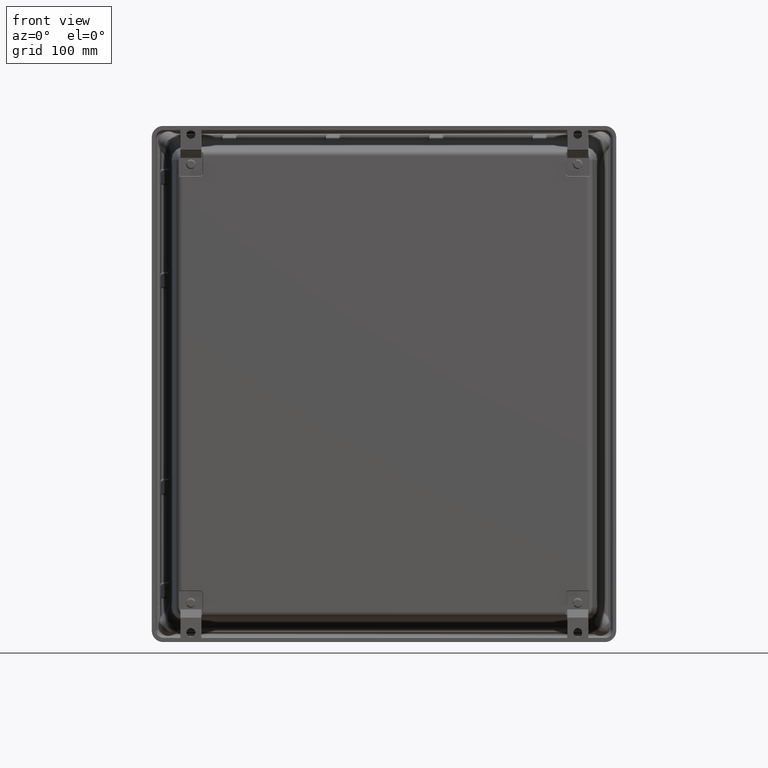
[diagram: clean part render]
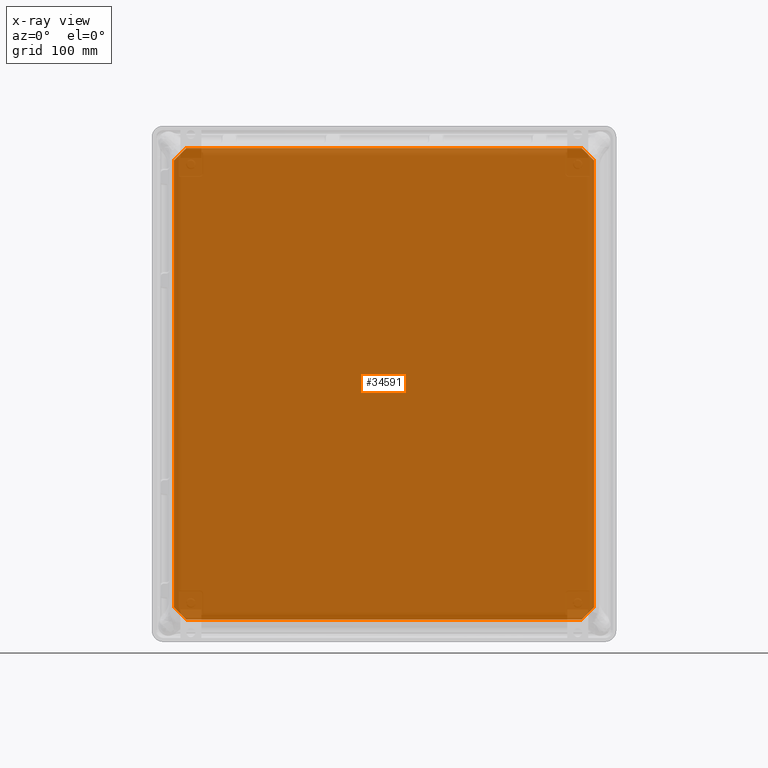
[diagram: x-ray — body ghosted, one internal face saturated and labeled with its STEP entity id]
A machine part, front view, then the same camera in x-ray: the body is ghosted and one INTERNAL B-rep face — a face not visible from any outside direction — is saturated and labeled: STEP entity #34591.
In plain terms, the highlighted planar face has unit normal (0, 1, 0).
Its self-contained STEP definition (entity closure, byte-faithful):
#70 = ORIENTED_EDGE ( 'NONE', *, *, #38664, .T. ) ;
#116 = CARTESIAN_POINT ( 'NONE',  ( -9.141072769686829200, -0.8750000000000000000, -7.650008076503469900 ) ) ;
#165 = CARTESIAN_POINT ( 'NONE',  ( -9.563000000000000600, -0.8750000000000000000, 8.141072769686825700 ) ) ;
#195 = VECTOR ( 'NONE', #46226, 39.37007874015748900 ) ;
#721 =( BOUNDED_CURVE ( )  B_SPLINE_CURVE ( 3, ( #26722, #780, #37942, #15668 ),
 .UNSPECIFIED., .F., .F. ) 
 B_SPLINE_CURVE_WITH_KNOTS ( ( 4, 4 ),
 ( -1.421085471520200400E-014, 0.3926359957910833300 ),
 .UNSPECIFIED. ) 
 CURVE ( )  GEOMETRIC_REPRESENTATION_ITEM ( )  RATIONAL_B_SPLINE_CURVE ( ( 1.000000000000000000, 0.9871942890935507800, 0.9871942890935507800, 1.000000000000000000 ) ) 
 REPRESENTATION_ITEM ( '' )  );
#780 = CARTESIAN_POINT ( 'NONE',  ( 8.654013161748949300, -0.8750000000000000000, -8.140276119518745200 ) ) ;
#1000 = EDGE_LOOP ( 'NONE', ( #11111, #30212, #18176, #2611, #44536, #9262, #12128, #70, #39787, #28366, #22043, #1915, #45243, #20445, #20882, #26333, #10643, #14234, #18498, #11494, #47666, #18209, #27766, #2884 ) ) ;
#1194 = VERTEX_POINT ( 'NONE', #42982 ) ;
#1492 = CARTESIAN_POINT ( 'NONE',  ( 9.134882022676672300, -0.8750000000000000000, -7.664953861896608900 ) ) ;
#1846 = CARTESIAN_POINT ( 'NONE',  ( 9.141072769686827500, -0.8750000000000000000, -7.645924450141575500 ) ) ;
#1850 = EDGE_CURVE ( 'NONE', #19111, #8792, #42594, .T. ) ;
#1915 = ORIENTED_EDGE ( 'NONE', *, *, #7598, .T. ) ;
#1931 = CARTESIAN_POINT ( 'NONE',  ( 9.131994462784348300, -0.8750000000000000000, 7.667841421788942600 ) ) ;
#1968 =( BOUNDED_CURVE ( )  B_SPLINE_CURVE ( 3, ( #29614, #22145, #37082, #14811 ),
 .UNSPECIFIED., .F., .F. ) 
 B_SPLINE_CURVE_WITH_KNOTS ( ( 4, 4 ),
 ( 5.890549311388465300, 6.283185307179598700 ),
 .UNSPECIFIED. ) 
 CURVE ( )  GEOMETRIC_REPRESENTATION_ITEM ( )  RATIONAL_B_SPLINE_CURVE ( ( 1.000000000000000000, 0.9871942890935484500, 0.9871942890935484500, 1.000000000000000000 ) ) 
 REPRESENTATION_ITEM ( '' )  );
#2171 = CARTESIAN_POINT ( 'NONE',  ( -8.657785841986582300, -0.8750000000000000000, -8.138713424197821000 ) ) ;
#2248 = CARTESIAN_POINT ( 'NONE',  ( -9.563000000000000600, -0.8750000000000000000, -8.141072769686827500 ) ) ;
#2439 = CARTESIAN_POINT ( 'NONE',  ( -8.667841421788939000, -0.8750000000000000000, 8.131994462784344800 ) ) ;
#2611 = ORIENTED_EDGE ( 'NONE', *, *, #12931, .T. ) ;
#2808 =( BOUNDED_CURVE ( )  B_SPLINE_CURVE ( 3, ( #26415, #7879, #15357, #41354 ),
 .UNSPECIFIED., .F., .F. ) 
 B_SPLINE_CURVE_WITH_KNOTS ( ( 4, 4 ),
 ( -1.421085471520200400E-014, 0.3926359957910833300 ),
 .UNSPECIFIED. ) 
 CURVE ( )  GEOMETRIC_REPRESENTATION_ITEM ( )  RATIONAL_B_SPLINE_CURVE ( ( 1.000000000000000000, 0.9871942890935507800, 0.9871942890935507800, 1.000000000000000000 ) ) 
 REPRESENTATION_ITEM ( '' )  );
#2880 = EDGE_CURVE ( 'NONE', #39133, #15780, #34520, .T. ) ;
#2884 = ORIENTED_EDGE ( 'NONE', *, *, #1850, .T. ) ;
#2901 = CARTESIAN_POINT ( 'NONE',  ( -8.667841421788939000, -0.8750000000000000000, 8.131994462784344800 ) ) ;
#3116 = CARTESIAN_POINT ( 'NONE',  ( 9.141072769686829200, -0.8750000000000000000, -7.650008076503471700 ) ) ;
#3382 = CARTESIAN_POINT ( 'NONE',  ( 8.657785841986582300, -0.8750000000000000000, 8.138713424197821000 ) ) ;
#4024 = EDGE_CURVE ( 'NONE', #39281, #30829, #7005, .T. ) ;
#4662 = VECTOR ( 'NONE', #20585, 39.37007874015748100 ) ;
#4704 = EDGE_CURVE ( 'NONE', #8792, #24822, #24415, .T. ) ;
#4908 =( BOUNDED_CURVE ( )  B_SPLINE_CURVE ( 3, ( #37915, #11884, #15650, #41668 ),
 .UNSPECIFIED., .F., .F. ) 
 B_SPLINE_CURVE_WITH_KNOTS ( ( 4, 4 ),
 ( 5.890549311388478600, 6.283185307179572000 ),
 .UNSPECIFIED. ) 
 CURVE ( )  GEOMETRIC_REPRESENTATION_ITEM ( )  RATIONAL_B_SPLINE_CURVE ( ( 1.000000000000000000, 0.9871942890935511100, 0.9871942890935511100, 1.000000000000000000 ) ) 
 REPRESENTATION_ITEM ( '' )  );
#5405 = VERTEX_POINT ( 'NONE', #5482 ) ;
#5482 = CARTESIAN_POINT ( 'NONE',  ( -9.141072769686829200, -0.8750000000000000000, 7.645924450141576400 ) ) ;
#5544 = LINE ( 'NONE', #165, #6653 ) ;
#5938 = CARTESIAN_POINT ( 'NONE',  ( 9.141072769686829200, -0.8750000000000000000, 7.650008076503469900 ) ) ;
#6128 = CARTESIAN_POINT ( 'NONE',  ( 8.645924450141572800, -0.8750000000000000000, 8.141072769686825700 ) ) ;
#6277 = VECTOR ( 'NONE', #31987, 39.37007874015748100 ) ;
#6414 = EDGE_CURVE ( 'NONE', #44980, #5405, #45833, .T. ) ;
#6464 = CARTESIAN_POINT ( 'NONE',  ( -8.661558522224218800, -0.8750000000000000000, -8.137150728876896700 ) ) ;
#6653 = VECTOR ( 'NONE', #26105, 39.37007874015748100 ) ;
#6700 = CARTESIAN_POINT ( 'NONE',  ( 8.661558522224215300, -0.8750000000000001100, 8.137150728876896700 ) ) ;
#7005 = LINE ( 'NONE', #2248, #14525 ) ;
#7598 = EDGE_CURVE ( 'NONE', #15780, #44980, #46607, .T. ) ;
#7879 = CARTESIAN_POINT ( 'NONE',  ( -8.654013161748949300, -0.8750000000000000000, 8.140276119518745200 ) ) ;
#8713 = VECTOR ( 'NONE', #28716, 39.37007874015748900 ) ;
#8792 = VERTEX_POINT ( 'NONE', #14739 ) ;
#9152 = DIRECTION ( 'NONE',  ( -0.7071067811865490200, 0.0000000000000000000, 0.7071067811865460200 ) ) ;
#9262 = ORIENTED_EDGE ( 'NONE', *, *, #39513, .T. ) ;
#9632 = CARTESIAN_POINT ( 'NONE',  ( 9.138713424197822700, -0.8750000000000000000, 7.657785841986584100 ) ) ;
#9713 = CARTESIAN_POINT ( 'NONE',  ( -9.141072769686829200, -0.8750000000000000000, -8.563000000000000600 ) ) ;
#10007 = LINE ( 'NONE', #34996, #195 ) ;
#10167 = CARTESIAN_POINT ( 'NONE',  ( -8.664953861896608000, -0.8750000000000000000, -8.134882022676670500 ) ) ;
#10206 = EDGE_CURVE ( 'NONE', #36378, #12689, #28152, .T. ) ;
#10643 = ORIENTED_EDGE ( 'NONE', *, *, #10206, .T. ) ;
#11016 = VERTEX_POINT ( 'NONE', #35927 ) ;
#11111 = ORIENTED_EDGE ( 'NONE', *, *, #4704, .T. ) ;
#11406 = CARTESIAN_POINT ( 'NONE',  ( -0.6630820577133965700, -0.8750000000000000000, -17.46291794228664100 ) ) ;
#11492 = VERTEX_POINT ( 'NONE', #14893 ) ;
#11494 = ORIENTED_EDGE ( 'NONE', *, *, #41555, .T. ) ;
#11884 = CARTESIAN_POINT ( 'NONE',  ( 8.664953861896609800, -0.8750000000000001100, -8.134882022676672300 ) ) ;
#12128 = ORIENTED_EDGE ( 'NONE', *, *, #4024, .T. ) ;
#12247 = CARTESIAN_POINT ( 'NONE',  ( -8.657785841986582300, -0.8750000000000000000, -8.138713424197821000 ) ) ;
#12275 = CARTESIAN_POINT ( 'NONE',  ( 8.667841421788937200, -0.8750000000000000000, 8.131994462784343000 ) ) ;
#12439 = EDGE_CURVE ( 'NONE', #24822, #11016, #24315, .T. ) ;
#12553 = CARTESIAN_POINT ( 'NONE',  ( -9.138713424197821000, -0.8750000000000000000, 7.657785841986585900 ) ) ;
#12689 = VERTEX_POINT ( 'NONE', #38797 ) ;
#12724 = CARTESIAN_POINT ( 'NONE',  ( -8.645924450141574600, -0.8750000000000000000, -8.141072769686827500 ) ) ;
#12865 = CARTESIAN_POINT ( 'NONE',  ( -9.137150728876898500, -0.8750000000000000000, 7.661558522224220600 ) ) ;
#12887 =( BOUNDED_CURVE ( )  B_SPLINE_CURVE ( 3, ( #45985, #19953, #1492, #27445 ),
 .UNSPECIFIED., .F., .F. ) 
 B_SPLINE_CURVE_WITH_KNOTS ( ( 4, 4 ),
 ( 1.232360864077365500E-014, 0.3926359957910804400 ),
 .UNSPECIFIED. ) 
 CURVE ( )  GEOMETRIC_REPRESENTATION_ITEM ( )  RATIONAL_B_SPLINE_CURVE ( ( 1.000000000000000000, 0.9871942890935525600, 0.9871942890935525600, 1.000000000000000000 ) ) 
 REPRESENTATION_ITEM ( '' )  );
#12931 = EDGE_CURVE ( 'NONE', #40311, #47275, #20568, .T. ) ;
#13091 = CARTESIAN_POINT ( 'NONE',  ( 9.141072769686827500, -0.8750000000000000000, -8.563000000000000600 ) ) ;
#13548 = CARTESIAN_POINT ( 'NONE',  ( 8.657785841986582300, -0.8750000000000000000, 8.138713424197821000 ) ) ;
#14037 = CARTESIAN_POINT ( 'NONE',  ( -8.661558522224218800, -0.8750000000000001100, 8.137150728876896700 ) ) ;
#14143 = CARTESIAN_POINT ( 'NONE',  ( 8.664953861896609800, -0.8750000000000001100, 8.134882022676670500 ) ) ;
#14147 = EDGE_CURVE ( 'NONE', #47436, #35228, #10007, .T. ) ;
#14234 = ORIENTED_EDGE ( 'NONE', *, *, #30743, .T. ) ;
#14260 = CARTESIAN_POINT ( 'NONE',  ( 9.141072769686827500, -0.8750000000000000000, -7.645924450141575500 ) ) ;
#14525 = VECTOR ( 'NONE', #20732, 39.37007874015748100 ) ;
#14739 = CARTESIAN_POINT ( 'NONE',  ( 9.141072769686829200, -0.8750000000000000000, 7.645924450141573700 ) ) ;
#14811 = CARTESIAN_POINT ( 'NONE',  ( -9.138713424197821000, -0.8750000000000000000, 7.657785841986585900 ) ) ;
#14893 = CARTESIAN_POINT ( 'NONE',  ( -9.138713424197821000, -0.8750000000000000000, 7.657785841986585900 ) ) ;
#14943 = VERTEX_POINT ( 'NONE', #28159 ) ;
#15187 = DIRECTION ( 'NONE',  ( -0.7071067811865490200, 0.0000000000000000000, -0.7071067811865460200 ) ) ;
#15266 =( BOUNDED_CURVE ( )  B_SPLINE_CURVE ( 3, ( #42954, #20647, #24399, #2171 ),
 .UNSPECIFIED., .F., .F. ) 
 B_SPLINE_CURVE_WITH_KNOTS ( ( 4, 4 ),
 ( 5.890549311388502600, 6.283185307179600400 ),
 .UNSPECIFIED. ) 
 CURVE ( )  GEOMETRIC_REPRESENTATION_ITEM ( )  RATIONAL_B_SPLINE_CURVE ( ( 1.000000000000000000, 0.9871942890935507800, 0.9871942890935507800, 1.000000000000000000 ) ) 
 REPRESENTATION_ITEM ( '' )  );
#15357 = CARTESIAN_POINT ( 'NONE',  ( -8.650008076503469900, -0.8750000000000000000, 8.141072769686827500 ) ) ;
#15650 = CARTESIAN_POINT ( 'NONE',  ( 8.661558522224218800, -0.8750000000000001100, -8.137150728876896700 ) ) ;
#15666 = VERTEX_POINT ( 'NONE', #27594 ) ;
#15668 = CARTESIAN_POINT ( 'NONE',  ( 8.645924450141574600, -0.8750000000000000000, -8.141072769686825700 ) ) ;
#15780 = VERTEX_POINT ( 'NONE', #47074 ) ;
#16343 = CARTESIAN_POINT ( 'NONE',  ( 9.138713424197822700, -0.8750000000000000000, 7.657785841986584100 ) ) ;
#18169 = VERTEX_POINT ( 'NONE', #12247 ) ;
#18176 = ORIENTED_EDGE ( 'NONE', *, *, #30312, .T. ) ;
#18183 =( BOUNDED_CURVE ( )  B_SPLINE_CURVE ( 3, ( #12553, #12865, #20360, #46392 ),
 .UNSPECIFIED., .F., .F. ) 
 B_SPLINE_CURVE_WITH_KNOTS ( ( 4, 4 ),
 ( 1.232360864077365500E-014, 0.3926359957910804400 ),
 .UNSPECIFIED. ) 
 CURVE ( )  GEOMETRIC_REPRESENTATION_ITEM ( )  RATIONAL_B_SPLINE_CURVE ( ( 1.000000000000000000, 0.9871942890935525600, 0.9871942890935525600, 1.000000000000000000 ) ) 
 REPRESENTATION_ITEM ( '' )  );
#18209 = ORIENTED_EDGE ( 'NONE', *, *, #14147, .T. ) ;
#18498 = ORIENTED_EDGE ( 'NONE', *, *, #25839, .T. ) ;
#18559 = LINE ( 'NONE', #32292, #8713 ) ;
#19111 = VERTEX_POINT ( 'NONE', #48177 ) ;
#19844 = EDGE_CURVE ( 'NONE', #47275, #14943, #4908, .T. ) ;
#19953 = CARTESIAN_POINT ( 'NONE',  ( 9.137150728876898500, -0.8750000000000000000, -7.661558522224218800 ) ) ;
#19986 = EDGE_CURVE ( 'NONE', #31345, #39133, #41652, .T. ) ;
#20360 = CARTESIAN_POINT ( 'NONE',  ( -9.134882022676670500, -0.8750000000000000000, 7.664953861896611500 ) ) ;
#20445 = ORIENTED_EDGE ( 'NONE', *, *, #40283, .T. ) ;
#20564 = CARTESIAN_POINT ( 'NONE',  ( -9.131994462784343000, -0.8750000000000000000, 7.667841421788939900 ) ) ;
#20568 = LINE ( 'NONE', #11406, #30452 ) ;
#20585 = DIRECTION ( 'NONE',  ( 0.0000000000000000000, 0.0000000000000000000, -1.000000000000000000 ) ) ;
#20647 = CARTESIAN_POINT ( 'NONE',  ( -8.650008076503469900, -0.8750000000000000000, -8.141072769686827500 ) ) ;
#20732 = DIRECTION ( 'NONE',  ( -1.000000000000000000, 0.0000000000000000000, 0.0000000000000000000 ) ) ;
#20882 = ORIENTED_EDGE ( 'NONE', *, *, #42300, .T. ) ;
#21230 =( BOUNDED_CURVE ( )  B_SPLINE_CURVE ( 3, ( #31160, #34879, #38627, #16343 ),
 .UNSPECIFIED., .F., .F. ) 
 B_SPLINE_CURVE_WITH_KNOTS ( ( 4, 4 ),
 ( 5.890549311388506100, 6.283185307179573800 ),
 .UNSPECIFIED. ) 
 CURVE ( )  GEOMETRIC_REPRESENTATION_ITEM ( )  RATIONAL_B_SPLINE_CURVE ( ( 1.000000000000000000, 0.9871942890935525600, 0.9871942890935525600, 1.000000000000000000 ) ) 
 REPRESENTATION_ITEM ( '' )  );
#21564 = EDGE_CURVE ( 'NONE', #39294, #47436, #24838, .T. ) ;
#21754 = CARTESIAN_POINT ( 'NONE',  ( 9.138713424197822700, -0.8750000000000000000, -7.657785841986584100 ) ) ;
#21766 = CARTESIAN_POINT ( 'NONE',  ( -9.563000000000000600, -0.8750000000000000000, -8.563000000000000600 ) ) ;
#22043 = ORIENTED_EDGE ( 'NONE', *, *, #2880, .T. ) ;
#22145 = CARTESIAN_POINT ( 'NONE',  ( -9.141072769686827500, -0.8750000000000000000, 7.650008076503472600 ) ) ;
#24315 =( BOUNDED_CURVE ( )  B_SPLINE_CURVE ( 3, ( #14260, #3116, #44038, #21754 ),
 .UNSPECIFIED., .F., .F. ) 
 B_SPLINE_CURVE_WITH_KNOTS ( ( 4, 4 ),
 ( 5.890549311388500800, 6.283185307179598700 ),
 .UNSPECIFIED. ) 
 CURVE ( )  GEOMETRIC_REPRESENTATION_ITEM ( )  RATIONAL_B_SPLINE_CURVE ( ( 1.000000000000000000, 0.9871942890935507800, 0.9871942890935507800, 1.000000000000000000 ) ) 
 REPRESENTATION_ITEM ( '' )  );
#24399 = CARTESIAN_POINT ( 'NONE',  ( -8.654013161748949300, -0.8750000000000000000, -8.140276119518745200 ) ) ;
#24415 = LINE ( 'NONE', #13091, #4662 ) ;
#24669 = CARTESIAN_POINT ( 'NONE',  ( -9.140276119518747000, -0.8750000000000000000, -7.654013161748950200 ) ) ;
#24822 = VERTEX_POINT ( 'NONE', #1846 ) ;
#24838 =( BOUNDED_CURVE ( )  B_SPLINE_CURVE ( 3, ( #36413, #6700, #14143, #40155 ),
 .UNSPECIFIED., .F., .F. ) 
 B_SPLINE_CURVE_WITH_KNOTS ( ( 4, 4 ),
 ( 1.445786488582384300E-014, 0.3926359957911324000 ),
 .UNSPECIFIED. ) 
 CURVE ( )  GEOMETRIC_REPRESENTATION_ITEM ( )  RATIONAL_B_SPLINE_CURVE ( ( 1.000000000000000000, 0.9871942890935493400, 0.9871942890935493400, 1.000000000000000000 ) ) 
 REPRESENTATION_ITEM ( '' )  );
#25346 = PLANE ( 'NONE',  #34788 ) ;
#25434 = CARTESIAN_POINT ( 'NONE',  ( 8.645924450141574600, -0.8750000000000000000, -8.141072769686825700 ) ) ;
#25498 = DIRECTION ( 'NONE',  ( 0.0000000000000000000, -0.0000000000000000000, -1.000000000000000000 ) ) ;
#25839 = EDGE_CURVE ( 'NONE', #1194, #15666, #5544, .T. ) ;
#26064 = CARTESIAN_POINT ( 'NONE',  ( -9.141072769686829200, -0.8750000000000000000, -7.645924450141573700 ) ) ;
#26105 = DIRECTION ( 'NONE',  ( 1.000000000000000000, 0.0000000000000000000, 0.0000000000000000000 ) ) ;
#26333 = ORIENTED_EDGE ( 'NONE', *, *, #29890, .T. ) ;
#26415 = CARTESIAN_POINT ( 'NONE',  ( -8.657785841986582300, -0.8750000000000000000, 8.138713424197821000 ) ) ;
#26722 = CARTESIAN_POINT ( 'NONE',  ( 8.657785841986582300, -0.8750000000000000000, -8.138713424197821000 ) ) ;
#27445 = CARTESIAN_POINT ( 'NONE',  ( 9.131994462784344800, -0.8750000000000000000, -7.667841421788938100 ) ) ;
#27594 = CARTESIAN_POINT ( 'NONE',  ( 8.645924450141572800, -0.8750000000000000000, 8.141072769686825700 ) ) ;
#27766 = ORIENTED_EDGE ( 'NONE', *, *, #47421, .T. ) ;
#28106 =( BOUNDED_CURVE ( )  B_SPLINE_CURVE ( 3, ( #43530, #6464, #10167, #36181 ),
 .UNSPECIFIED., .F., .F. ) 
 B_SPLINE_CURVE_WITH_KNOTS ( ( 4, 4 ),
 ( 1.445786488582384300E-014, 0.3926359957910824400 ),
 .UNSPECIFIED. ) 
 CURVE ( )  GEOMETRIC_REPRESENTATION_ITEM ( )  RATIONAL_B_SPLINE_CURVE ( ( 1.000000000000000000, 0.9871942890935525600, 0.9871942890935525600, 1.000000000000000000 ) ) 
 REPRESENTATION_ITEM ( '' )  );
#28152 =( BOUNDED_CURVE ( )  B_SPLINE_CURVE ( 3, ( #2901, #36309, #14037, #40053 ),
 .UNSPECIFIED., .F., .F. ) 
 B_SPLINE_CURVE_WITH_KNOTS ( ( 4, 4 ),
 ( 5.890549311388478600, 6.283185307179572000 ),
 .UNSPECIFIED. ) 
 CURVE ( )  GEOMETRIC_REPRESENTATION_ITEM ( )  RATIONAL_B_SPLINE_CURVE ( ( 1.000000000000000000, 0.9871942890935511100, 0.9871942890935511100, 1.000000000000000000 ) ) 
 REPRESENTATION_ITEM ( '' )  );
#28159 = CARTESIAN_POINT ( 'NONE',  ( 8.657785841986582300, -0.8750000000000000000, -8.138713424197821000 ) ) ;
#28236 = CARTESIAN_POINT ( 'NONE',  ( -9.131994462784344800, -0.8750000000000000000, -7.667841421788939000 ) ) ;
#28280 = CARTESIAN_POINT ( 'NONE',  ( -8.667841421788937200, -0.8750000000000000000, -8.131994462784343000 ) ) ;
#28360 = CARTESIAN_POINT ( 'NONE',  ( 8.650008076503469900, -0.8750000000000000000, 8.141072769686827500 ) ) ;
#28366 = ORIENTED_EDGE ( 'NONE', *, *, #19986, .T. ) ;
#28382 = CARTESIAN_POINT ( 'NONE',  ( -9.138713424197822700, -0.8750000000000000000, -7.657785841986584100 ) ) ;
#28716 = DIRECTION ( 'NONE',  ( 0.7071067811865490200, 0.0000000000000000000, 0.7071067811865460200 ) ) ;
#29614 = CARTESIAN_POINT ( 'NONE',  ( -9.141072769686829200, -0.8750000000000000000, 7.645924450141576400 ) ) ;
#29890 = EDGE_CURVE ( 'NONE', #30183, #36378, #18559, .T. ) ;
#30183 = VERTEX_POINT ( 'NONE', #20564 ) ;
#30212 = ORIENTED_EDGE ( 'NONE', *, *, #12439, .T. ) ;
#30312 = EDGE_CURVE ( 'NONE', #11016, #40311, #12887, .T. ) ;
#30452 = VECTOR ( 'NONE', #15187, 39.37007874015748900 ) ;
#30743 = EDGE_CURVE ( 'NONE', #12689, #1194, #2808, .T. ) ;
#30829 = VERTEX_POINT ( 'NONE', #12724 ) ;
#31160 = CARTESIAN_POINT ( 'NONE',  ( 9.131994462784348300, -0.8750000000000000000, 7.667841421788942600 ) ) ;
#31345 = VERTEX_POINT ( 'NONE', #28280 ) ;
#31788 = VECTOR ( 'NONE', #9152, 39.37007874015748900 ) ;
#31901 = CARTESIAN_POINT ( 'NONE',  ( 9.140276119518747000, -0.8750000000000000000, 7.654013161748950200 ) ) ;
#31987 = DIRECTION ( 'NONE',  ( 0.0000000000000000000, 0.0000000000000000000, 1.000000000000000000 ) ) ;
#32292 = CARTESIAN_POINT ( 'NONE',  ( -17.46291794228664400, -0.8750000000000000000, -0.6630820577133221800 ) ) ;
#34520 =( BOUNDED_CURVE ( )  B_SPLINE_CURVE ( 3, ( #41000, #48151, #40676, #44739 ),
 .UNSPECIFIED., .F., .F. ) 
 B_SPLINE_CURVE_WITH_KNOTS ( ( 4, 4 ),
 ( 5.890549311388455500, 6.283185307179573800 ),
 .UNSPECIFIED. ) 
 CURVE ( )  GEOMETRIC_REPRESENTATION_ITEM ( )  RATIONAL_B_SPLINE_CURVE ( ( 1.000000000000000000, 0.9871942890935493400, 0.9871942890935493400, 1.000000000000000000 ) ) 
 REPRESENTATION_ITEM ( '' )  );
#34591 = ADVANCED_FACE ( 'NONE', ( #38804 ), #25346, .F. ) ;
#34788 = AXIS2_PLACEMENT_3D ( 'NONE', #21766, #47769, #25498 ) ;
#34876 = EDGE_CURVE ( 'NONE', #18169, #31345, #28106, .T. ) ;
#34879 = CARTESIAN_POINT ( 'NONE',  ( 9.134882022676672300, -0.8750000000000000000, 7.664953861896608900 ) ) ;
#34996 = CARTESIAN_POINT ( 'NONE',  ( 7.899917942286607300, -0.8750000000000000000, 8.899917942286681000 ) ) ;
#35155 = CARTESIAN_POINT ( 'NONE',  ( -8.899917942286641900, -0.8750000000000000000, -7.899917942286640100 ) ) ;
#35228 = VERTEX_POINT ( 'NONE', #1931 ) ;
#35647 = CARTESIAN_POINT ( 'NONE',  ( 9.141072769686829200, -0.8750000000000000000, 7.645924450141573700 ) ) ;
#35827 = CARTESIAN_POINT ( 'NONE',  ( 8.654013161748947500, -0.8750000000000000000, 8.140276119518745200 ) ) ;
#35927 = CARTESIAN_POINT ( 'NONE',  ( 9.138713424197822700, -0.8750000000000000000, -7.657785841986584100 ) ) ;
#36181 = CARTESIAN_POINT ( 'NONE',  ( -8.667841421788937200, -0.8750000000000000000, -8.131994462784343000 ) ) ;
#36309 = CARTESIAN_POINT ( 'NONE',  ( -8.664953861896609800, -0.8750000000000001100, 8.134882022676672300 ) ) ;
#36378 = VERTEX_POINT ( 'NONE', #2439 ) ;
#36413 = CARTESIAN_POINT ( 'NONE',  ( 8.657785841986582300, -0.8750000000000000000, 8.138713424197821000 ) ) ;
#37082 = CARTESIAN_POINT ( 'NONE',  ( -9.140276119518745200, -0.8750000000000000000, 7.654013161748952000 ) ) ;
#37168 = CARTESIAN_POINT ( 'NONE',  ( 8.667841421788939000, -0.8750000000000000000, -8.131994462784343000 ) ) ;
#37915 = CARTESIAN_POINT ( 'NONE',  ( 8.667841421788939000, -0.8750000000000000000, -8.131994462784343000 ) ) ;
#37942 = CARTESIAN_POINT ( 'NONE',  ( 8.650008076503469900, -0.8750000000000000000, -8.141072769686827500 ) ) ;
#38485 =( BOUNDED_CURVE ( )  B_SPLINE_CURVE ( 3, ( #6128, #28360, #35827, #13548 ),
 .UNSPECIFIED., .F., .F. ) 
 B_SPLINE_CURVE_WITH_KNOTS ( ( 4, 4 ),
 ( 5.890549311388502600, 6.283185307179600400 ),
 .UNSPECIFIED. ) 
 CURVE ( )  GEOMETRIC_REPRESENTATION_ITEM ( )  RATIONAL_B_SPLINE_CURVE ( ( 1.000000000000000000, 0.9871942890935507800, 0.9871942890935507800, 1.000000000000000000 ) ) 
 REPRESENTATION_ITEM ( '' )  );
#38627 = CARTESIAN_POINT ( 'NONE',  ( 9.137150728876898500, -0.8750000000000000000, 7.661558522224218800 ) ) ;
#38664 = EDGE_CURVE ( 'NONE', #30829, #18169, #15266, .T. ) ;
#38797 = CARTESIAN_POINT ( 'NONE',  ( -8.657785841986582300, -0.8750000000000000000, 8.138713424197821000 ) ) ;
#38804 = FACE_OUTER_BOUND ( 'NONE', #1000, .T. ) ;
#39133 = VERTEX_POINT ( 'NONE', #28236 ) ;
#39281 = VERTEX_POINT ( 'NONE', #25434 ) ;
#39294 = VERTEX_POINT ( 'NONE', #3382 ) ;
#39513 = EDGE_CURVE ( 'NONE', #14943, #39281, #721, .T. ) ;
#39787 = ORIENTED_EDGE ( 'NONE', *, *, #34876, .T. ) ;
#40053 = CARTESIAN_POINT ( 'NONE',  ( -8.657785841986582300, -0.8750000000000000000, 8.138713424197821000 ) ) ;
#40155 = CARTESIAN_POINT ( 'NONE',  ( 8.667841421788937200, -0.8750000000000000000, 8.131994462784343000 ) ) ;
#40283 = EDGE_CURVE ( 'NONE', #5405, #11492, #1968, .T. ) ;
#40311 = VERTEX_POINT ( 'NONE', #41144 ) ;
#40676 = CARTESIAN_POINT ( 'NONE',  ( -9.137150728876898500, -0.8750000000000001100, -7.661558522224218000 ) ) ;
#41000 = CARTESIAN_POINT ( 'NONE',  ( -9.131994462784344800, -0.8750000000000000000, -7.667841421788939000 ) ) ;
#41144 = CARTESIAN_POINT ( 'NONE',  ( 9.131994462784344800, -0.8750000000000000000, -7.667841421788938100 ) ) ;
#41354 = CARTESIAN_POINT ( 'NONE',  ( -8.645924450141574600, -0.8750000000000000000, 8.141072769686825700 ) ) ;
#41555 = EDGE_CURVE ( 'NONE', #15666, #39294, #38485, .T. ) ;
#41652 = LINE ( 'NONE', #35155, #31788 ) ;
#41668 = CARTESIAN_POINT ( 'NONE',  ( 8.657785841986582300, -0.8750000000000000000, -8.138713424197821000 ) ) ;
#42300 = EDGE_CURVE ( 'NONE', #11492, #30183, #18183, .T. ) ;
#42594 =( BOUNDED_CURVE ( )  B_SPLINE_CURVE ( 3, ( #9632, #31901, #5938, #35647 ),
 .UNSPECIFIED., .F., .F. ) 
 B_SPLINE_CURVE_WITH_KNOTS ( ( 4, 4 ),
 ( -1.243449787580175300E-014, 0.3926359957911206800 ),
 .UNSPECIFIED. ) 
 CURVE ( )  GEOMETRIC_REPRESENTATION_ITEM ( )  RATIONAL_B_SPLINE_CURVE ( ( 1.000000000000000000, 0.9871942890935484500, 0.9871942890935484500, 1.000000000000000000 ) ) 
 REPRESENTATION_ITEM ( '' )  );
#42954 = CARTESIAN_POINT ( 'NONE',  ( -8.645924450141574600, -0.8750000000000000000, -8.141072769686827500 ) ) ;
#42982 = CARTESIAN_POINT ( 'NONE',  ( -8.645924450141574600, -0.8750000000000000000, 8.141072769686825700 ) ) ;
#43530 = CARTESIAN_POINT ( 'NONE',  ( -8.657785841986582300, -0.8750000000000000000, -8.138713424197821000 ) ) ;
#44038 = CARTESIAN_POINT ( 'NONE',  ( 9.140276119518745200, -0.8750000000000000000, -7.654013161748950200 ) ) ;
#44536 = ORIENTED_EDGE ( 'NONE', *, *, #19844, .T. ) ;
#44739 = CARTESIAN_POINT ( 'NONE',  ( -9.138713424197822700, -0.8750000000000000000, -7.657785841986584100 ) ) ;
#44980 = VERTEX_POINT ( 'NONE', #46166 ) ;
#45243 = ORIENTED_EDGE ( 'NONE', *, *, #6414, .T. ) ;
#45833 = LINE ( 'NONE', #9713, #6277 ) ;
#45985 = CARTESIAN_POINT ( 'NONE',  ( 9.138713424197822700, -0.8750000000000000000, -7.657785841986584100 ) ) ;
#46166 = CARTESIAN_POINT ( 'NONE',  ( -9.141072769686829200, -0.8750000000000000000, -7.645924450141573700 ) ) ;
#46226 = DIRECTION ( 'NONE',  ( 0.7071067811865490200, 0.0000000000000000000, -0.7071067811865460200 ) ) ;
#46392 = CARTESIAN_POINT ( 'NONE',  ( -9.131994462784343000, -0.8750000000000000000, 7.667841421788939900 ) ) ;
#46607 =( BOUNDED_CURVE ( )  B_SPLINE_CURVE ( 3, ( #28382, #24669, #116, #26064 ),
 .UNSPECIFIED., .F., .F. ) 
 B_SPLINE_CURVE_WITH_KNOTS ( ( 4, 4 ),
 ( -1.243449787580175300E-014, 0.3926359957911206800 ),
 .UNSPECIFIED. ) 
 CURVE ( )  GEOMETRIC_REPRESENTATION_ITEM ( )  RATIONAL_B_SPLINE_CURVE ( ( 1.000000000000000000, 0.9871942890935484500, 0.9871942890935484500, 1.000000000000000000 ) ) 
 REPRESENTATION_ITEM ( '' )  );
#47074 = CARTESIAN_POINT ( 'NONE',  ( -9.138713424197822700, -0.8750000000000000000, -7.657785841986584100 ) ) ;
#47275 = VERTEX_POINT ( 'NONE', #37168 ) ;
#47421 = EDGE_CURVE ( 'NONE', #35228, #19111, #21230, .T. ) ;
#47436 = VERTEX_POINT ( 'NONE', #12275 ) ;
#47666 = ORIENTED_EDGE ( 'NONE', *, *, #21564, .T. ) ;
#47769 = DIRECTION ( 'NONE',  ( 0.0000000000000000000, -1.000000000000000000, 0.0000000000000000000 ) ) ;
#48151 = CARTESIAN_POINT ( 'NONE',  ( -9.134882022676674000, -0.8750000000000001100, -7.664953861896609800 ) ) ;
#48177 = CARTESIAN_POINT ( 'NONE',  ( 9.138713424197822700, -0.8750000000000000000, 7.657785841986584100 ) ) ;